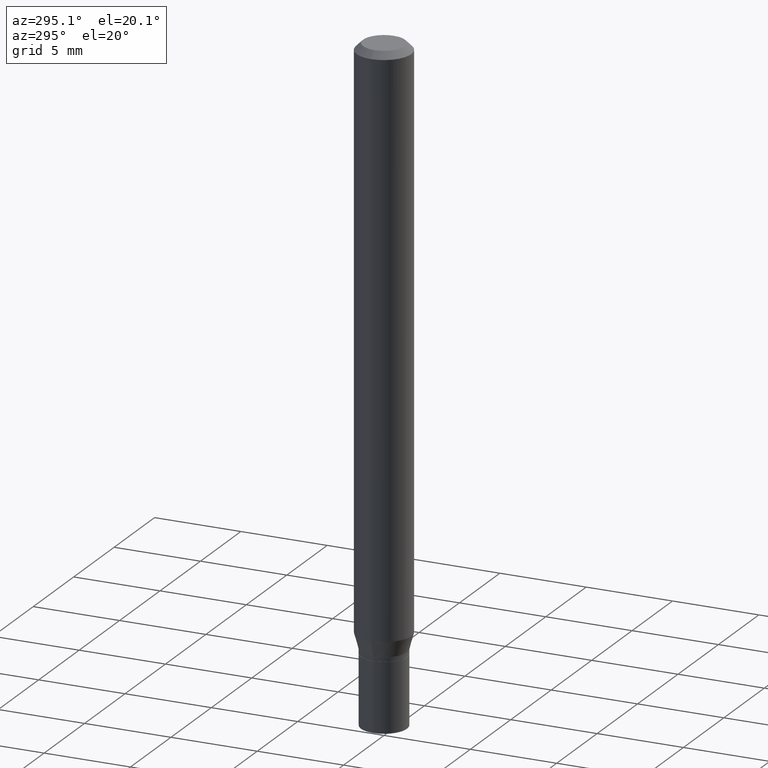
[diagram: clean part render]
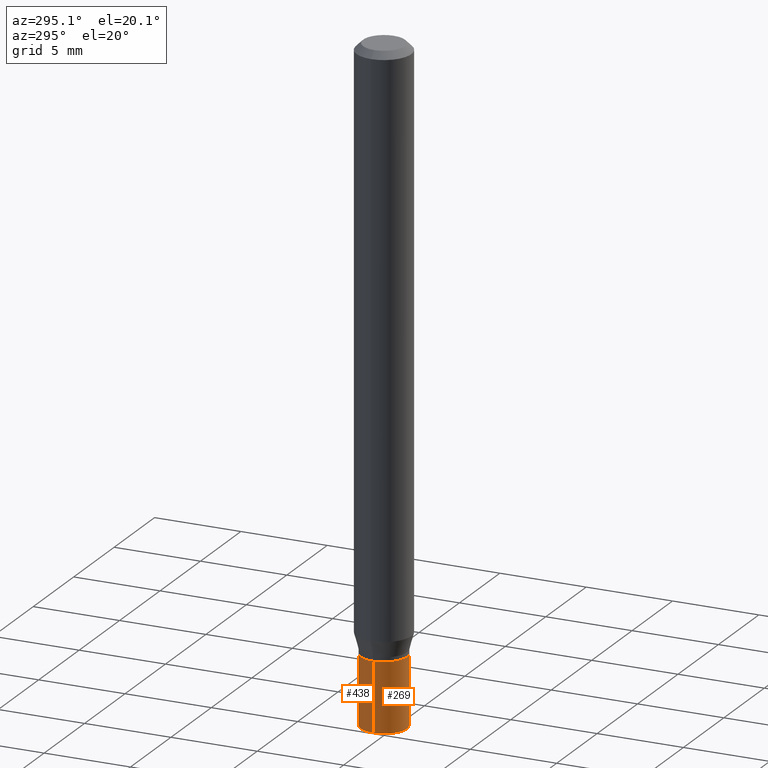
[diagram: same view with one multi-face feature highlighted, each face labeled with its STEP entity id]
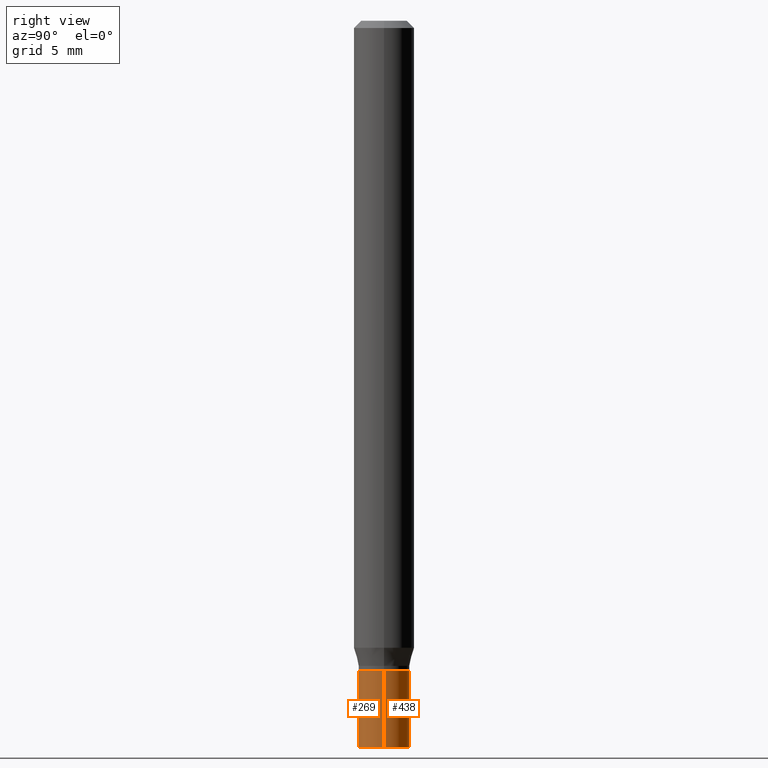
[diagram: same view with one multi-face feature highlighted, each face labeled with its STEP entity id]
A machine part, auxiliary view. The highlighted faces form ONE feature: a constant-radius fillet chain: 2 tangent blend faces with common blend radius 1.3335 mm. The faces share edges in the B-rep.
A second angle (right view) of the same feature is appended — it is thin or edge-on in the first view.
Their STEP definitions:
[1] entity #438 (Cylinder):
#9 = DIRECTION ( 'NONE',  ( -2.445468806185136877E-29, 3.491481338843145188E-15, 1.000000000000000000 ) ) ;
#17 = EDGE_CURVE ( 'NONE', #321, #263, #427, .T. ) ;
#23 = EDGE_CURVE ( 'NONE', #373, #321, #56, .T. ) ;
#27 = ORIENTED_EDGE ( 'NONE', *, *, #17, .F. ) ;
#45 = VECTOR ( 'NONE', #9, 39.37007874015748143 ) ;
#55 = CARTESIAN_POINT ( 'NONE',  ( 0.05249999999999999806, -5.052173497306030121E-15, -1.342000000000000082 ) ) ;
#56 = LINE ( 'NONE', #305, #234 ) ;
#69 = ORIENTED_EDGE ( 'NONE', *, *, #316, .T. ) ;
#71 = DIRECTION ( 'NONE',  ( -2.445468806185136597E-29, 3.491481338843145583E-15, 1.000000000000000000 ) ) ;
#99 = CARTESIAN_POINT ( 'NONE',  ( 0.05249999999999999806, -5.603827548843247337E-15, -1.500000000000000222 ) ) ;
#115 = ORIENTED_EDGE ( 'NONE', *, *, #23, .F. ) ;
#177 = CARTESIAN_POINT ( 'NONE',  ( 3.281819137900453057E-29, -4.685567956727500961E-15, -1.342000000000000082 ) ) ;
#178 = CYLINDRICAL_SURFACE ( 'NONE', #414, 0.05249999999999999806 ) ;
#202 = CARTESIAN_POINT ( 'NONE',  ( -0.05249999999999999806, -4.588360046222057034E-15, -1.342000000000000082 ) ) ;
#203 = LINE ( 'NONE', #336, #45 ) ;
#210 = AXIS2_PLACEMENT_3D ( 'NONE', #177, #314, #374 ) ;
#213 = DIRECTION ( 'NONE',  ( 1.000000000000000000, -6.982962677686268288E-15, 0.000000000000000000 ) ) ;
#234 = VECTOR ( 'NONE', #255, 39.37007874015748143 ) ;
#242 = CARTESIAN_POINT ( 'NONE',  ( 3.668203209277704895E-29, -5.237222008264718177E-15, -1.500000000000000222 ) ) ;
#250 = FACE_OUTER_BOUND ( 'NONE', #292, .T. ) ;
#255 = DIRECTION ( 'NONE',  ( -2.445468806185136877E-29, 3.491481338843145188E-15, 1.000000000000000000 ) ) ;
#263 = VERTEX_POINT ( 'NONE', #202 ) ;
#279 = DIRECTION ( 'NONE',  ( -2.445468806185136597E-29, 3.491481338843145583E-15, 1.000000000000000000 ) ) ;
#292 = EDGE_LOOP ( 'NONE', ( #439, #69, #27, #115 ) ) ;
#305 = CARTESIAN_POINT ( 'NONE',  ( 0.05249999999999999806, -3.666055405785289629E-16, 2.559992807292866011E-30 ) ) ;
#314 = DIRECTION ( 'NONE',  ( -2.445468806185136597E-29, 3.491481338843145583E-15, 1.000000000000000000 ) ) ;
#316 = EDGE_CURVE ( 'NONE', #334, #263, #203, .T. ) ;
#319 = CARTESIAN_POINT ( 'NONE',  ( 0.000000000000000000, 0.000000000000000000, 0.000000000000000000 ) ) ;
#321 = VERTEX_POINT ( 'NONE', #55 ) ;
#334 = VERTEX_POINT ( 'NONE', #401 ) ;
#336 = CARTESIAN_POINT ( 'NONE',  ( -0.05249999999999999806, 3.730349362740525838E-16, -2.582440922383825311E-30 ) ) ;
#373 = VERTEX_POINT ( 'NONE', #99 ) ;
#374 = DIRECTION ( 'NONE',  ( 1.000000000000000000, -6.982962677686268288E-15, 0.000000000000000000 ) ) ;
#385 = AXIS2_PLACEMENT_3D ( 'NONE', #242, #279, #213 ) ;
#395 = EDGE_CURVE ( 'NONE', #373, #334, #456, .T. ) ;
#396 = DIRECTION ( 'NONE',  ( 1.000000000000000000, -6.982962677686265922E-15, 4.876176775795935232E-29 ) ) ;
#401 = CARTESIAN_POINT ( 'NONE',  ( -0.05249999999999999806, -4.588360046222057034E-15, -1.500000000000000222 ) ) ;
#414 = AXIS2_PLACEMENT_3D ( 'NONE', #319, #71, #396 ) ;
#427 = CIRCLE ( 'NONE', #210, 0.05249999999999999806 ) ;
#438 = ADVANCED_FACE ( 'NONE', ( #250 ), #178, .T. ) ;
#439 = ORIENTED_EDGE ( 'NONE', *, *, #395, .T. ) ;
#456 = CIRCLE ( 'NONE', #385, 0.05249999999999999806 ) ;
[2] entity #269 (Cylinder):
#1 = ORIENTED_EDGE ( 'NONE', *, *, #23, .T. ) ;
#9 = DIRECTION ( 'NONE',  ( -2.445468806185136877E-29, 3.491481338843145188E-15, 1.000000000000000000 ) ) ;
#13 = EDGE_LOOP ( 'NONE', ( #306, #369, #1, #280 ) ) ;
#23 = EDGE_CURVE ( 'NONE', #373, #321, #56, .T. ) ;
#41 = CIRCLE ( 'NONE', #105, 0.05249999999999999806 ) ;
#45 = VECTOR ( 'NONE', #9, 39.37007874015748143 ) ;
#55 = CARTESIAN_POINT ( 'NONE',  ( 0.05249999999999999806, -5.052173497306030121E-15, -1.342000000000000082 ) ) ;
#56 = LINE ( 'NONE', #305, #234 ) ;
#57 = AXIS2_PLACEMENT_3D ( 'NONE', #132, #387, #230 ) ;
#97 = DIRECTION ( 'NONE',  ( 1.000000000000000000, -6.982962677686268288E-15, 0.000000000000000000 ) ) ;
#99 = CARTESIAN_POINT ( 'NONE',  ( 0.05249999999999999806, -5.603827548843247337E-15, -1.500000000000000222 ) ) ;
#105 = AXIS2_PLACEMENT_3D ( 'NONE', #434, #361, #97 ) ;
#106 = DIRECTION ( 'NONE',  ( -2.445468806185136597E-29, 3.491481338843145583E-15, 1.000000000000000000 ) ) ;
#132 = CARTESIAN_POINT ( 'NONE',  ( 3.668203209277704895E-29, -5.237222008264718177E-15, -1.500000000000000222 ) ) ;
#150 = EDGE_CURVE ( 'NONE', #263, #321, #41, .T. ) ;
#174 = CIRCLE ( 'NONE', #57, 0.05249999999999999806 ) ;
#202 = CARTESIAN_POINT ( 'NONE',  ( -0.05249999999999999806, -4.588360046222057034E-15, -1.342000000000000082 ) ) ;
#203 = LINE ( 'NONE', #336, #45 ) ;
#212 = EDGE_CURVE ( 'NONE', #334, #373, #174, .T. ) ;
#230 = DIRECTION ( 'NONE',  ( 1.000000000000000000, -6.982962677686268288E-15, 0.000000000000000000 ) ) ;
#234 = VECTOR ( 'NONE', #255, 39.37007874015748143 ) ;
#255 = DIRECTION ( 'NONE',  ( -2.445468806185136877E-29, 3.491481338843145188E-15, 1.000000000000000000 ) ) ;
#263 = VERTEX_POINT ( 'NONE', #202 ) ;
#269 = ADVANCED_FACE ( 'NONE', ( #335 ), #350, .T. ) ;
#280 = ORIENTED_EDGE ( 'NONE', *, *, #150, .F. ) ;
#305 = CARTESIAN_POINT ( 'NONE',  ( 0.05249999999999999806, -3.666055405785289629E-16, 2.559992807292866011E-30 ) ) ;
#306 = ORIENTED_EDGE ( 'NONE', *, *, #316, .F. ) ;
#316 = EDGE_CURVE ( 'NONE', #334, #263, #203, .T. ) ;
#321 = VERTEX_POINT ( 'NONE', #55 ) ;
#334 = VERTEX_POINT ( 'NONE', #401 ) ;
#335 = FACE_OUTER_BOUND ( 'NONE', #13, .T. ) ;
#336 = CARTESIAN_POINT ( 'NONE',  ( -0.05249999999999999806, 3.730349362740525838E-16, -2.582440922383825311E-30 ) ) ;
#350 = CYLINDRICAL_SURFACE ( 'NONE', #417, 0.05249999999999999806 ) ;
#361 = DIRECTION ( 'NONE',  ( -2.445468806185136597E-29, 3.491481338843145583E-15, 1.000000000000000000 ) ) ;
#369 = ORIENTED_EDGE ( 'NONE', *, *, #212, .T. ) ;
#373 = VERTEX_POINT ( 'NONE', #99 ) ;
#382 = DIRECTION ( 'NONE',  ( 1.000000000000000000, -6.982962677686265922E-15, 4.876176775795935232E-29 ) ) ;
#387 = DIRECTION ( 'NONE',  ( -2.445468806185136597E-29, 3.491481338843145583E-15, 1.000000000000000000 ) ) ;
#401 = CARTESIAN_POINT ( 'NONE',  ( -0.05249999999999999806, -4.588360046222057034E-15, -1.500000000000000222 ) ) ;
#417 = AXIS2_PLACEMENT_3D ( 'NONE', #419, #106, #382 ) ;
#419 = CARTESIAN_POINT ( 'NONE',  ( 0.000000000000000000, 0.000000000000000000, 0.000000000000000000 ) ) ;
#434 = CARTESIAN_POINT ( 'NONE',  ( 3.281819137900453057E-29, -4.685567956727500961E-15, -1.342000000000000082 ) ) ;